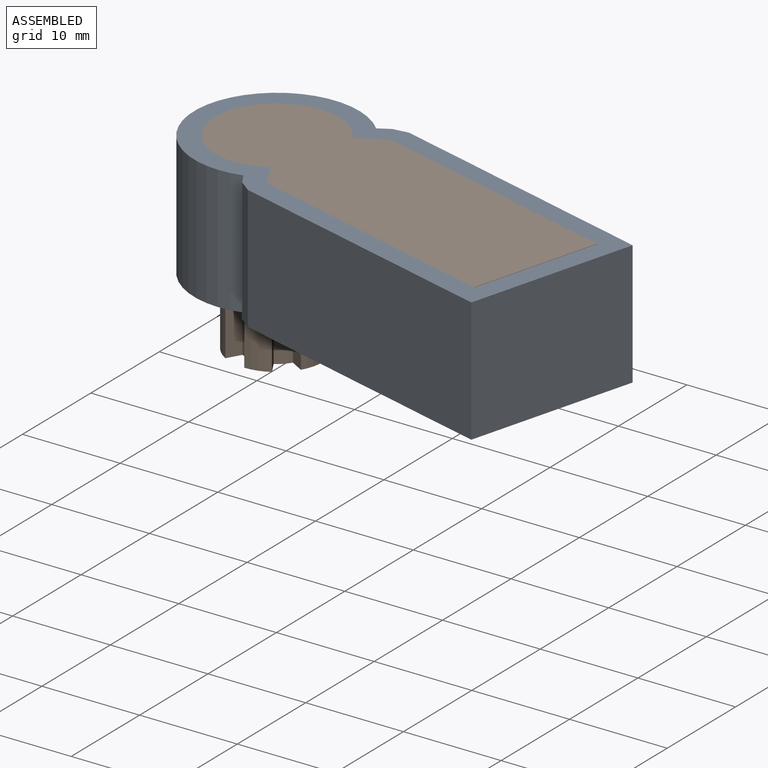
[diagram: assembled view]
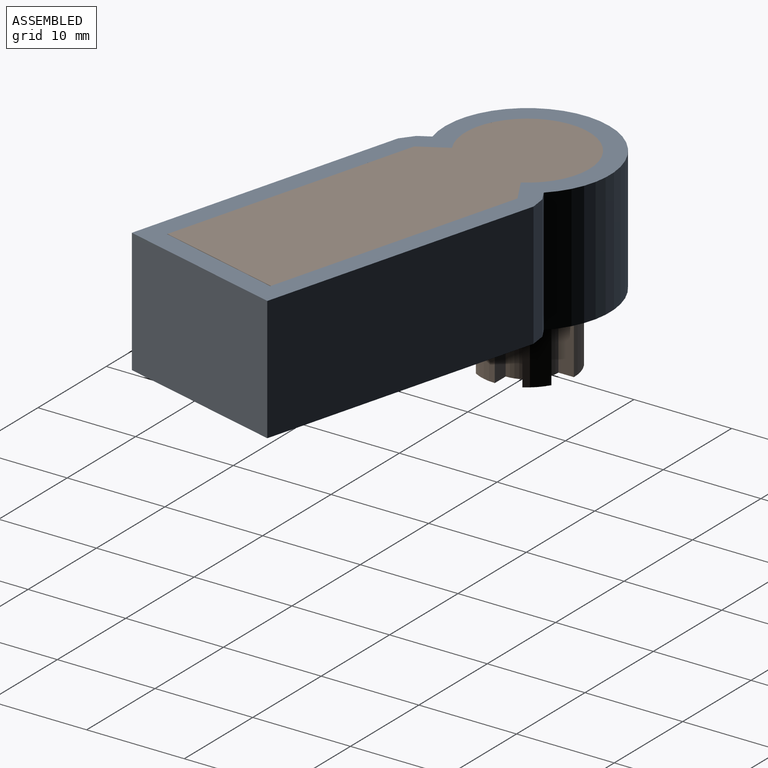
[diagram: assembled view, second angle]
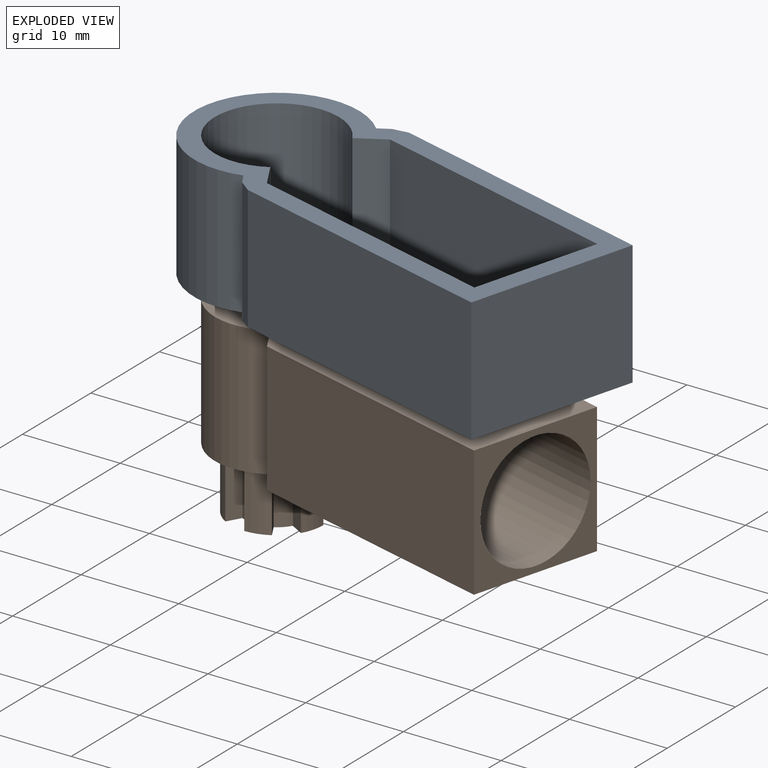
[diagram: exploded view]
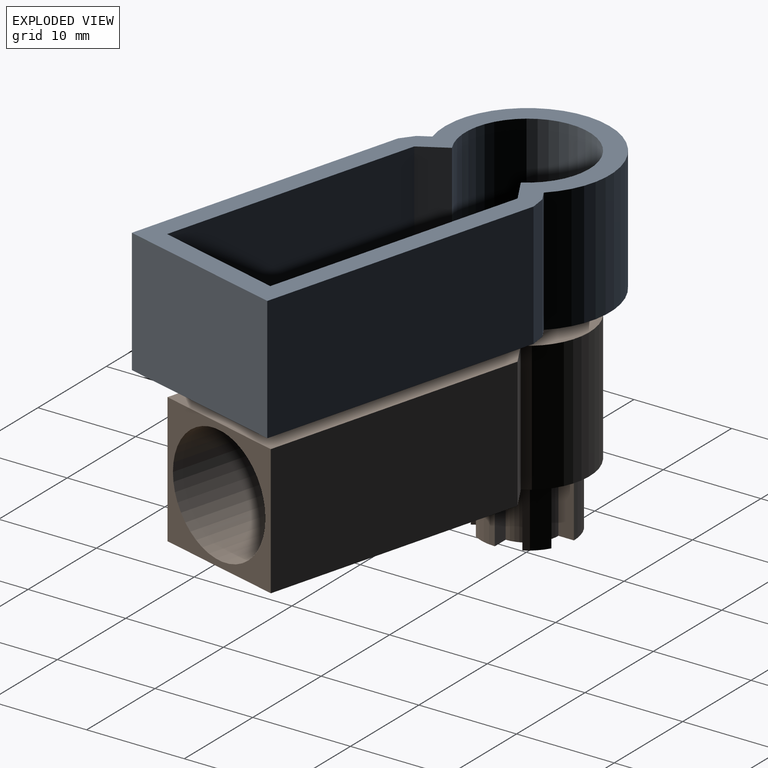
[diagram: exploded view, second angle]
ASSEMBLY  parts=2 mates=2
PART A: 16 faces, bbox 45.4x26.3x12.7 mm
  f0: plane 12.7x1.59mm, normal (-0.13,0.99,0), area 20.4mm2, adj f1,f13,f14,f15
  f1: plane 12.7x1.16mm, normal (-0.5,0.87,0), area 17.1mm2, adj f0,f2,f14,f15
  f2: cylinder r=8.45mm len=16.89mm, axis (0,0,-1), area 451.7mm2, adj f1,f3,f14,f15
  f3: plane 12.7x1.16mm, normal (-0.87,-0.5,0), area 17.1mm2, adj f2,f4,f14,f15
  f4: plane 12.7x1.27mm, normal (-0.61,-0.79,0), area 20.4mm2, adj f3,f5,f14,f15
  f5: plane 28.15x12.7mm, normal (-0.26,-0.97,0), area 370.2mm2, adj f4,f6,f14,f15
  f6: plane 17.06x12.7mm, normal (0.97,-0.26,0), area 224.3mm2, adj f5,f13,f14,f15
  f7: cylinder r=6.35mm len=12.7mm, axis (0,0,-1), area 380mm2, adj f8,f12,f14,f15
  f8: plane 12.7x2.75mm, normal (0.5,-0.87,0), area 40.3mm2, adj f7,f9,f14,f15
  f9: plane 26.13x12.7mm, normal (-0.26,-0.97,0), area 343.5mm2, adj f8,f10,f14,f15
  f10: plane 13.01x12.7mm, normal (-0.97,0.26,0), area 171.1mm2, adj f9,f11,f14,f15
  f11: plane 26.13x12.7mm, normal (0.26,0.97,0), area 343.5mm2, adj f10,f12,f14,f15
  f12: plane 12.7x2.75mm, normal (0.87,0.5,0), area 40.3mm2, adj f7,f11,f14,f15
  f13: plane 28.15x12.7mm, normal (0.26,0.97,0), area 370.2mm2, adj f0,f6,f14,f15
  f14: plane 45.39x26.26mm, normal (0,0,1), area 231.4mm2, adj f0,f1,f2,f3,f4,f5,f6,f7
  f15: plane 45.39x26.26mm, normal (0,0,-1), area 231.4mm2, adj f0,f1,f2,f3,f4,f5,f6,f7
PART B: 36 faces, bbox 41.3x21.6x19.7 mm
  f0: plane 6.35x1.59mm, normal (0,-1,0), area 10.1mm2, adj f1,f23,f24,f25
  f1: cylinder r=3.17mm len=6.35mm, axis (0,0,-1), area 10.6mm2, adj f0,f2,f24,f25
  f2: plane 6.35x1.38mm, normal (-0.5,0.87,0), area 10.1mm2, adj f1,f3,f24,f25
  f3: cylinder r=4.76mm len=6.35mm, axis (0,0,-1), area 15.8mm2, adj f2,f4,f24,f25
  f4: plane 6.35x1.38mm, normal (0.87,-0.5,0), area 10.1mm2, adj f3,f5,f24,f25
  f5: cylinder r=3.17mm len=6.35mm, axis (0,0,-1), area 10.6mm2, adj f4,f6,f24,f25
  f6: plane 6.35x1.59mm, normal (-1,0,0), area 10.1mm2, adj f5,f7,f24,f25
  f7: cylinder r=4.76mm len=6.35mm, axis (0,0,-1), area 15.8mm2, adj f6,f8,f24,f25
  f8: plane 6.35x1.38mm, normal (0.87,0.5,0), area 10.1mm2, adj f7,f9,f24,f25
  f9: cylinder r=3.17mm len=6.35mm, axis (0,0,-1), area 10.6mm2, adj f8,f10,f24,f25
  f10: plane 6.35x1.38mm, normal (-0.5,-0.87,0), area 10.1mm2, adj f9,f11,f24,f25
  f11: cylinder r=4.76mm len=6.35mm, axis (0,0,-1), area 15.8mm2, adj f10,f12,f24,f25
  f12: plane 6.35x1.59mm, normal (0,1,0), area 10.1mm2, adj f11,f13,f24,f25
  f13: cylinder r=3.17mm len=6.35mm, axis (0,0,-1), area 10.6mm2, adj f12,f14,f24,f25
  f14: plane 6.35x1.38mm, normal (0.5,-0.87,0), area 10.1mm2, adj f13,f15,f24,f25
  f15: cylinder r=4.76mm len=6.35mm, axis (0,0,-1), area 15.8mm2, adj f14,f16,f24,f25
  f16: plane 6.35x1.38mm, normal (-0.87,0.5,0), area 10.1mm2, adj f15,f17,f24,f25
  f17: cylinder r=3.17mm len=6.35mm, axis (0,0,-1), area 10.6mm2, adj f16,f18,f24,f25
  f18: plane 6.35x1.59mm, normal (1,0,0), area 10.1mm2, adj f17,f19,f24,f25
  f19: cylinder r=4.76mm len=6.35mm, axis (0,0,-1), area 15.8mm2, adj f18,f20,f24,f25
  f20: plane 6.35x1.38mm, normal (-0.87,-0.5,0), area 10.1mm2, adj f19,f21,f24,f25
  f21: cylinder r=3.17mm len=6.35mm, axis (0,0,-1), area 10.6mm2, adj f20,f22,f24,f25
  f22: plane 6.35x1.38mm, normal (0.5,0.87,0), area 10.1mm2, adj f21,f23,f24,f25
  f23: cylinder r=4.76mm len=6.35mm, axis (0,0,-1), area 15.8mm2, adj f0,f22,f24,f25
  f24: plane 9.53x9.53mm, normal (0,0,-1), area 51.5mm2, adj f0,f1,f2,f3,f4,f5,f6,f7
  f25: plane 40.68x21.59mm, normal (0,0,-1), area 452.6mm2, adj f0,f1,f2,f3,f4,f5,f6,f7
  f26: plane 13.34x2.75mm, normal (-0.5,0.87,0), area 42.3mm2, adj f25,f27,f29,f31
  f27: cylinder r=6.35mm len=13.34mm, axis (0,0,-1), area 366.2mm2, adj f25,f26,f28,f29,f35
  f28: plane 13.34x2.75mm, normal (-0.87,-0.5,0), area 42.3mm2, adj f25,f27,f29,f30
  f29: plane 40.68x21.59mm, normal (0,0,1), area 504.1mm2, adj f26,f27,f28,f30,f31,f33
  f30: plane 26.08x13.34mm, normal (-0.26,-0.97,0), area 360mm2, adj f25,f28,f29,f33
  f31: plane 26.08x13.34mm, normal (0.26,0.97,0), area 360mm2, adj f25,f26,f29,f33
  f32: cylinder r=6.03mm len=29.2mm, axis (-0.97,0.26,0), area 1023.4mm2, adj f33,f34
  f33: plane 13.34x13.01mm, normal (0.97,-0.26,0), area 65.3mm2, adj f25,f29,f30,f31,f32
  f34: plane 12.07x11.65mm, normal (0.97,-0.26,0), area 82.7mm2, adj f32,f35
  f35: cylinder r=3.17mm len=14.28mm, axis (0.97,-0.26,0), area 252.7mm2, adj f27,f34
PLACE A t=(-26.91,6.66,-8.48)mm
PLACE B t=(-50.45,13.85,-15.47)mm
MATE planar B.f29 <-> A.f14  axis (0,0,1) through (-18.44,4.39,4.22)mm
MATE cylindrical B.f1 <-> A.f2  axis (0,0,-1) through (-32.7,8.21,4.22)mm
